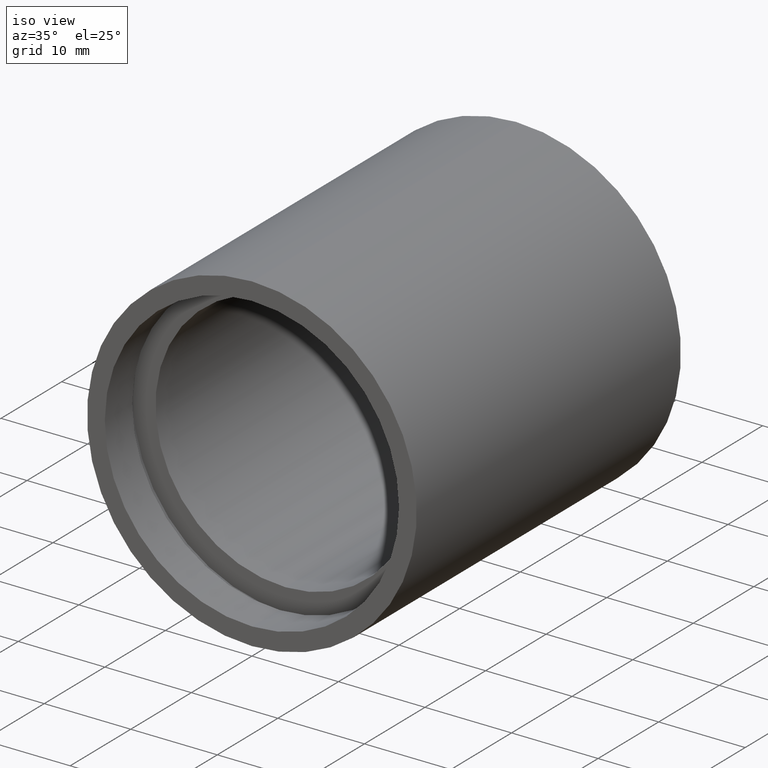
[diagram: clean part render]
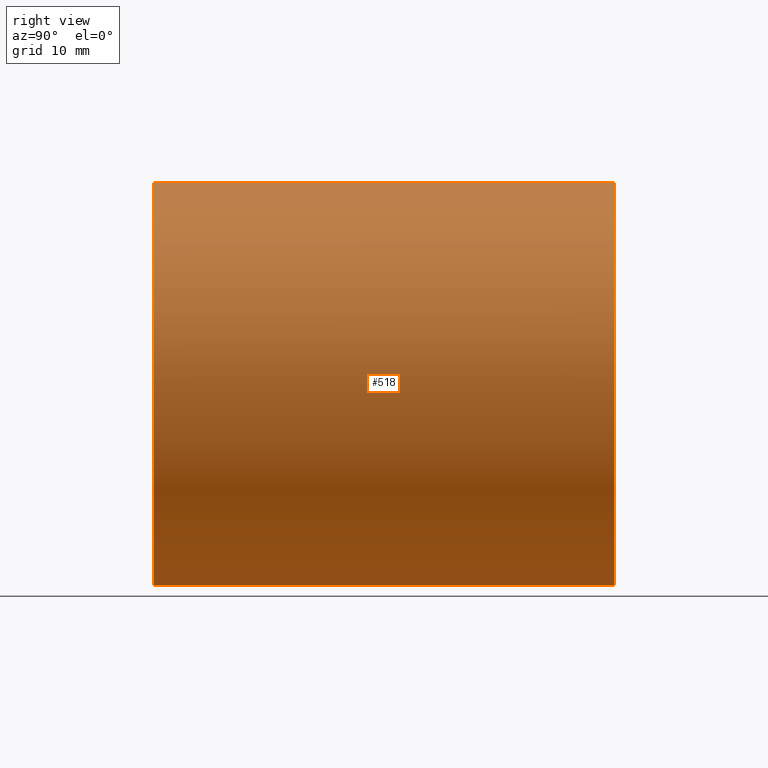
[diagram: tour spotlight — one face highlighted and labeled with its STEP entity id]
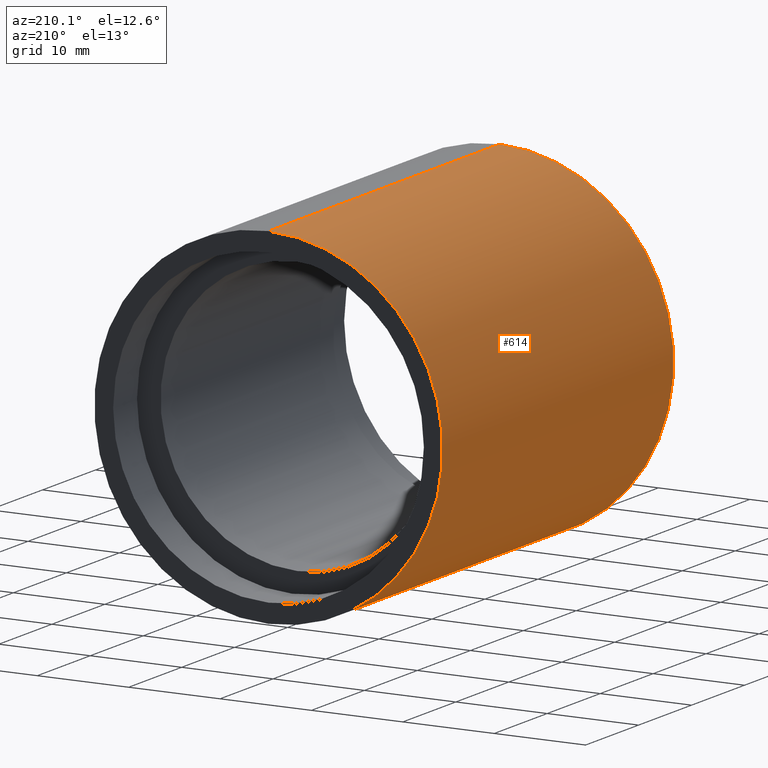
[diagram: tour spotlight — one face highlighted and labeled with its STEP entity id]
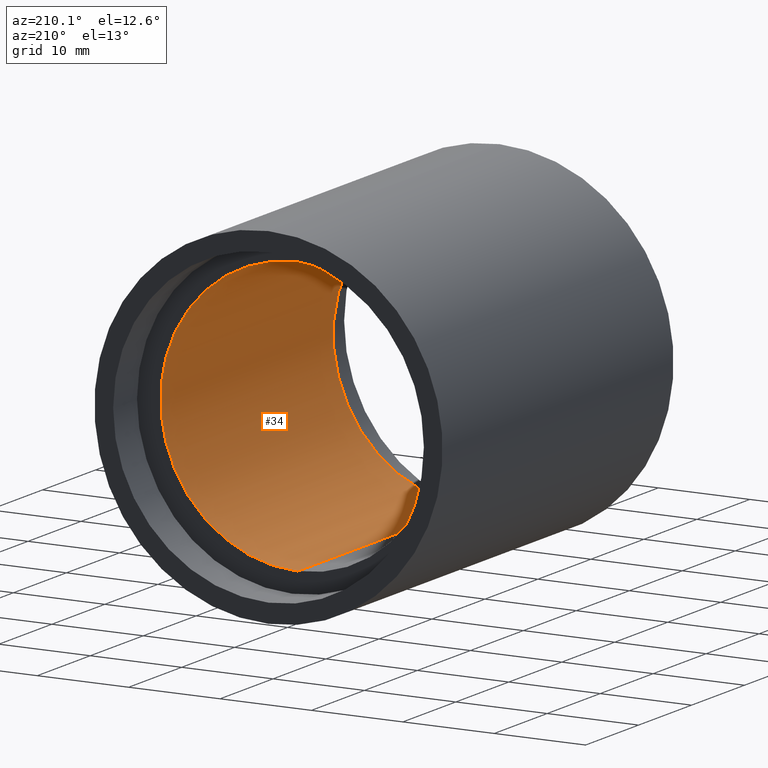
[diagram: tour spotlight — one face highlighted and labeled with its STEP entity id]
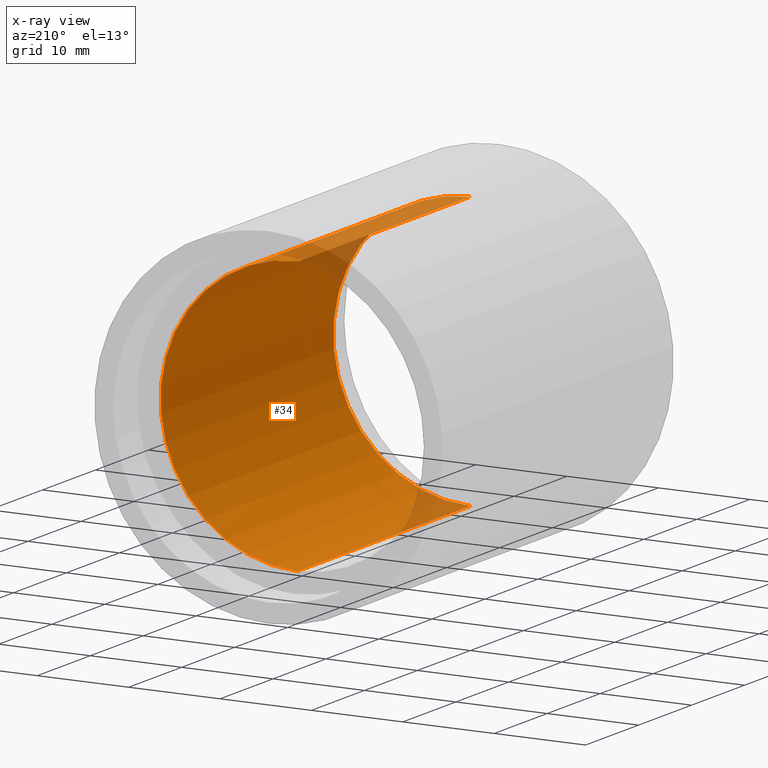
[diagram: x-ray of the same camera — body ghosted, this tour face saturated]
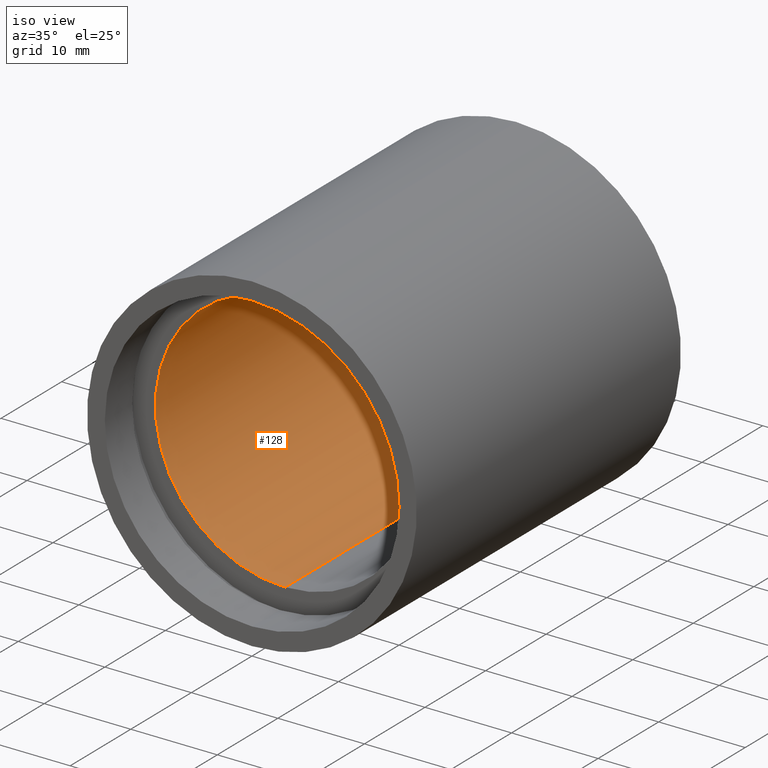
[diagram: tour spotlight — one face highlighted and labeled with its STEP entity id]
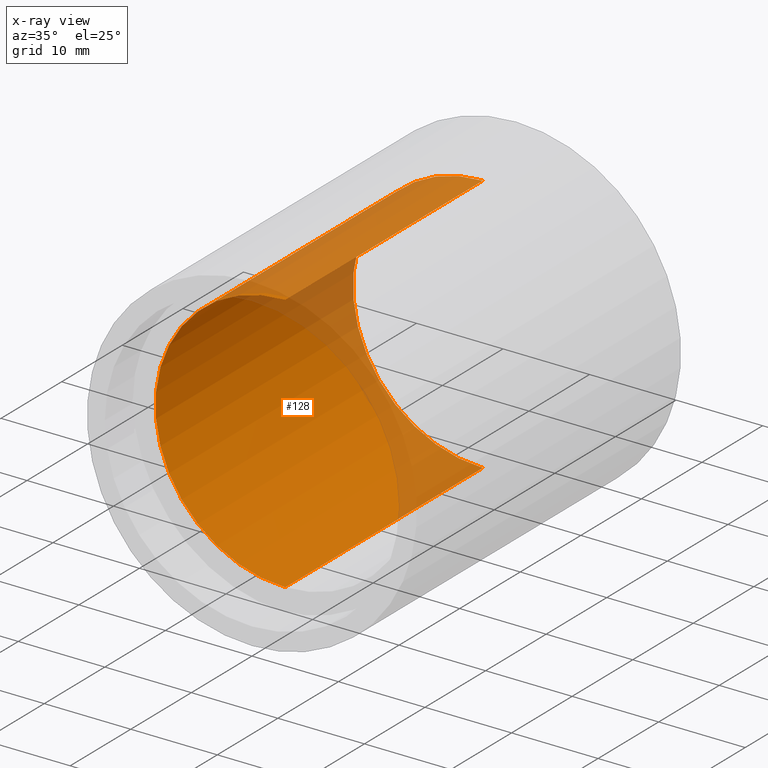
[diagram: x-ray of the same camera — body ghosted, this tour face saturated]
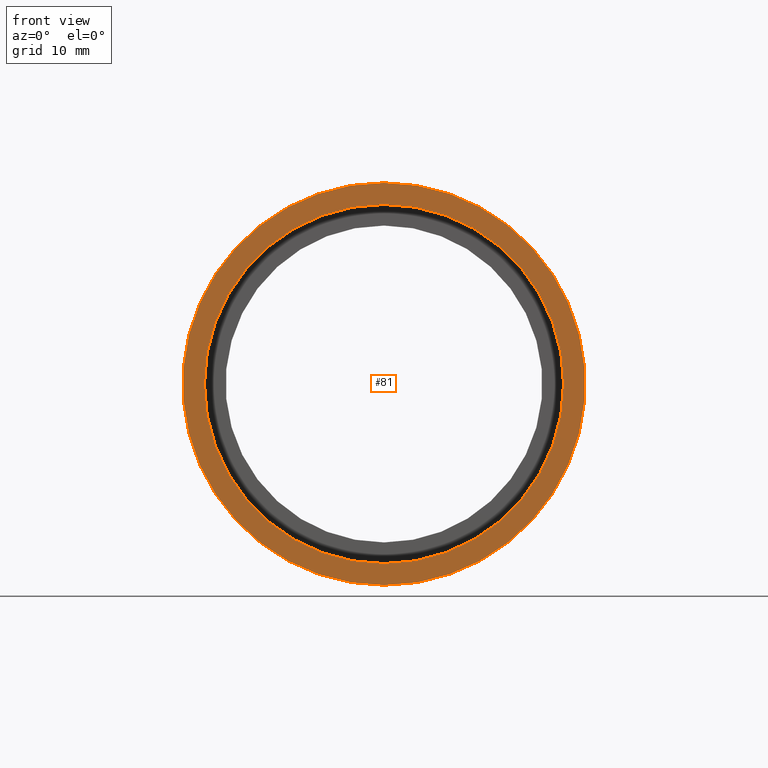
[diagram: tour spotlight — one face highlighted and labeled with its STEP entity id]
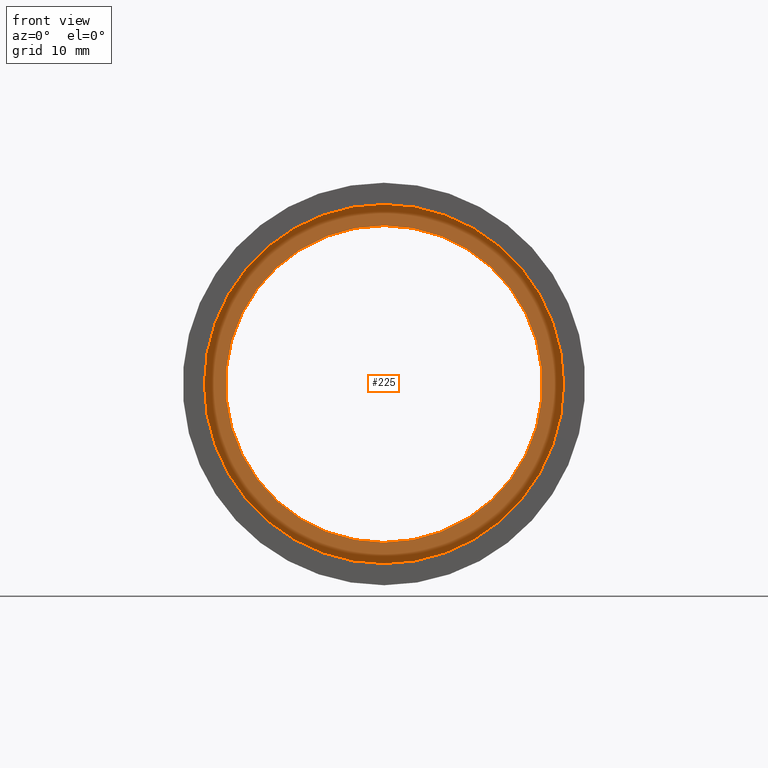
[diagram: tour spotlight — one face highlighted and labeled with its STEP entity id]
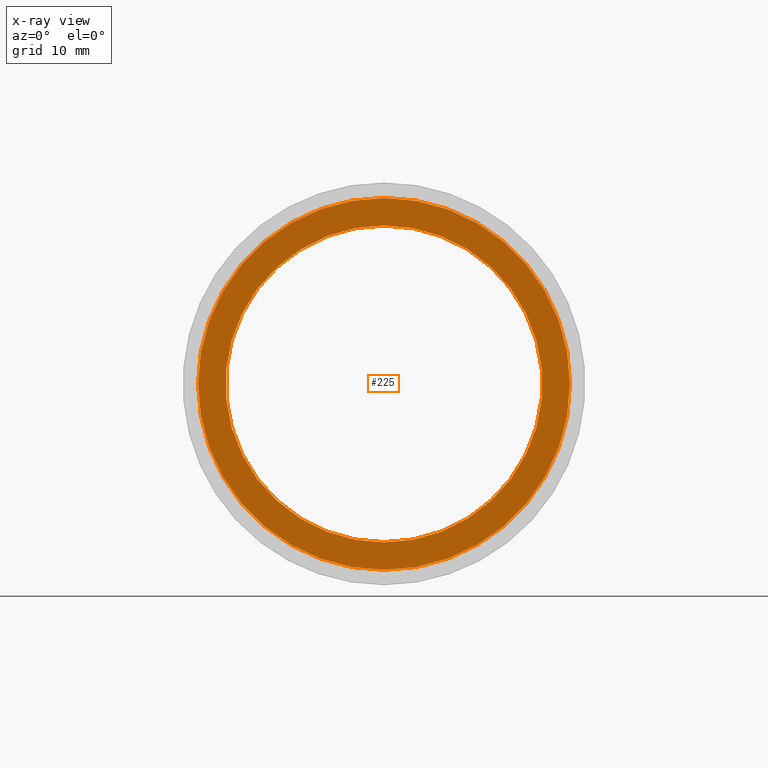
[diagram: x-ray of the same camera — body ghosted, this tour face saturated]
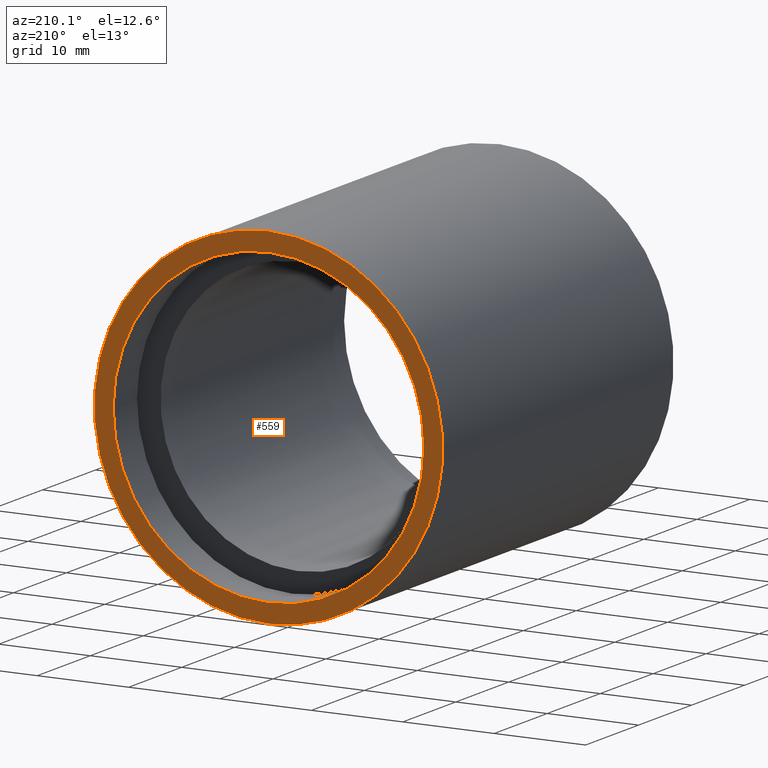
[diagram: tour spotlight — one face highlighted and labeled with its STEP entity id]
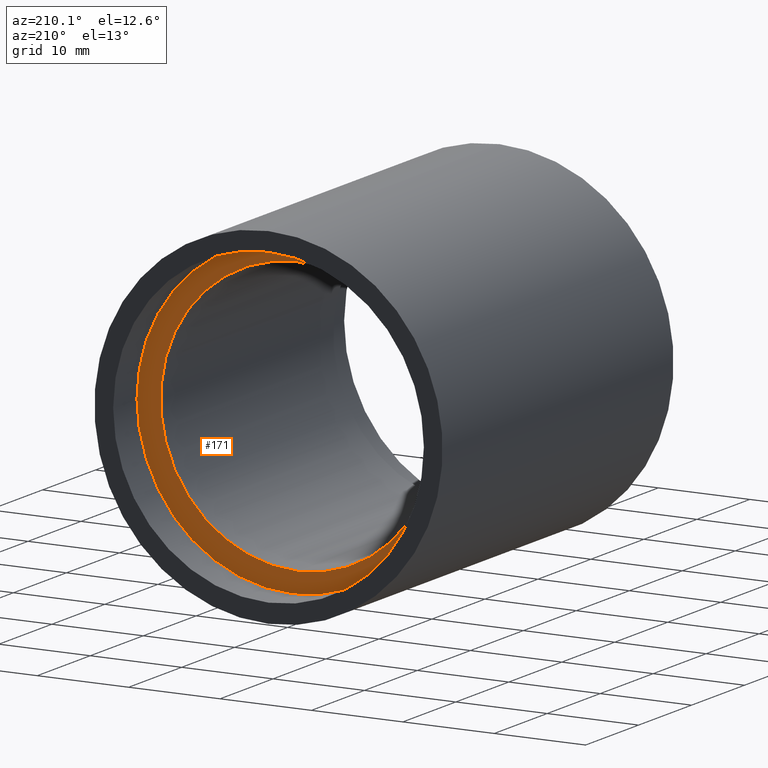
[diagram: tour spotlight — one face highlighted and labeled with its STEP entity id]
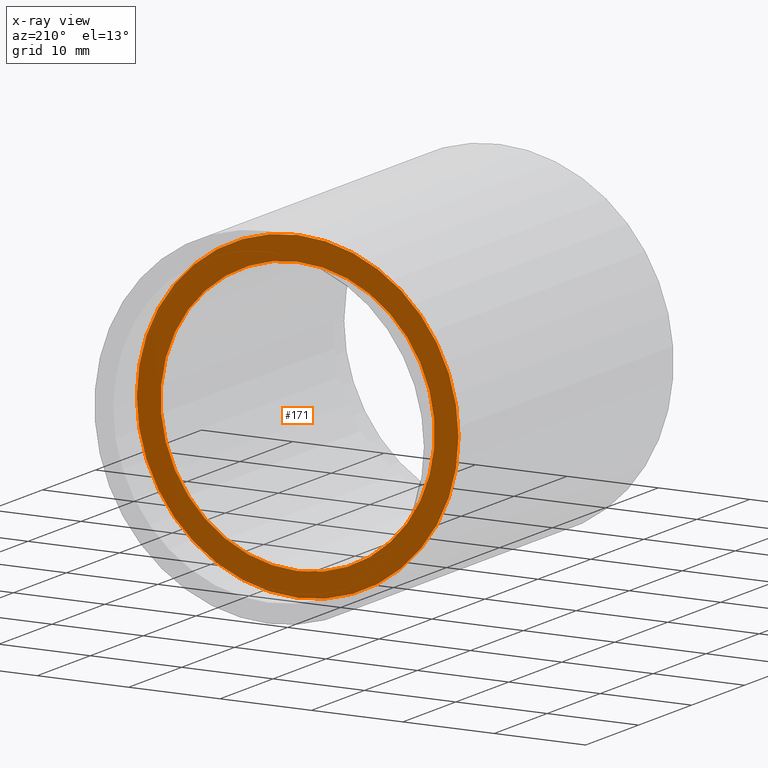
[diagram: x-ray of the same camera — body ghosted, this tour face saturated]
A machine part: a face-by-face anatomy tour. The part has 18 B-rep faces; the first image is the clean iso view, then the 8 largest visible faces are spotlighted one at a time (largest first), each with its STEP entity span.

Face 1 — right view, entity #518. In plain terms, the highlighted cylindrical surface (partial cylindrical patch) has radius 19.05 mm, axis along (-0, 1, -0).
Definition (entity closure, byte-faithful):
#30 = DIRECTION ( 'NONE',  ( -0.0000000000000000000, 1.000000000000000000, -0.0000000000000000000 ) ) ;
#50 = DIRECTION ( 'NONE',  ( -0.0000000000000000000, 1.000000000000000000, -0.0000000000000000000 ) ) ;
#79 = CARTESIAN_POINT ( 'NONE',  ( 2.332952152375710400E-015, -2.775557561562891400E-014, -19.05000000000002200 ) ) ;
#82 = EDGE_LOOP ( 'NONE', ( #83, #583, #237, #105 ) ) ;
#83 = ORIENTED_EDGE ( 'NONE', *, *, #216, .T. ) ;
#94 = AXIS2_PLACEMENT_3D ( 'NONE', #124, #30, #121 ) ;
#105 = ORIENTED_EDGE ( 'NONE', *, *, #505, .F. ) ;
#121 = DIRECTION ( 'NONE',  ( 0.0000000000000000000, 0.0000000000000000000, 1.000000000000000000 ) ) ;
#124 = CARTESIAN_POINT ( 'NONE',  ( 0.0000000000000000000, -2.775557561562891400E-014, 0.0000000000000000000 ) ) ;
#140 = CARTESIAN_POINT ( 'NONE',  ( 2.332952152375710400E-015, 161.3761669434274500, -19.05000000000002200 ) ) ;
#148 = CARTESIAN_POINT ( 'NONE',  ( 0.0000000000000000000, 43.59999999999998700, 0.0000000000000000000 ) ) ;
#181 = VECTOR ( 'NONE', #618, 1000.000000000000000 ) ;
#204 = FACE_OUTER_BOUND ( 'NONE', #82, .T. ) ;
#216 = EDGE_CURVE ( 'NONE', #556, #301, #302, .T. ) ;
#231 = CARTESIAN_POINT ( 'NONE',  ( 2.332952152375710400E-015, 43.59999999999998700, -19.05000000000002200 ) ) ;
#237 = ORIENTED_EDGE ( 'NONE', *, *, #612, .F. ) ;
#248 = DIRECTION ( 'NONE',  ( 0.0000000000000000000, 0.0000000000000000000, 1.000000000000000000 ) ) ;
#260 = VERTEX_POINT ( 'NONE', #231 ) ;
#277 = VERTEX_POINT ( 'NONE', #611 ) ;
#297 = AXIS2_PLACEMENT_3D ( 'NONE', #148, #482, #248 ) ;
#301 = VERTEX_POINT ( 'NONE', #79 ) ;
#302 = CIRCLE ( 'NONE', #94, 19.05000000000002200 ) ;
#326 = DIRECTION ( 'NONE',  ( -0.0000000000000000000, 1.000000000000000000, -0.0000000000000000000 ) ) ;
#334 = CARTESIAN_POINT ( 'NONE',  ( 0.0000000000000000000, 161.3761669434274500, 0.0000000000000000000 ) ) ;
#336 = EDGE_CURVE ( 'NONE', #301, #260, #390, .T. ) ;
#369 = CYLINDRICAL_SURFACE ( 'NONE', #582, 19.05000000000002200 ) ;
#390 = LINE ( 'NONE', #140, #181 ) ;
#428 = CARTESIAN_POINT ( 'NONE',  ( 0.0000000000000000000, 161.3761669434274500, 19.05000000000002200 ) ) ;
#433 = DIRECTION ( 'NONE',  ( 0.0000000000000000000, 0.0000000000000000000, 1.000000000000000000 ) ) ;
#452 = CIRCLE ( 'NONE', #297, 19.05000000000002200 ) ;
#474 = VECTOR ( 'NONE', #50, 1000.000000000000000 ) ;
#482 = DIRECTION ( 'NONE',  ( -0.0000000000000000000, 1.000000000000000000, -0.0000000000000000000 ) ) ;
#505 = EDGE_CURVE ( 'NONE', #556, #277, #562, .T. ) ;
#518 = ADVANCED_FACE ( 'NONE', ( #204 ), #369, .T. ) ;
#556 = VERTEX_POINT ( 'NONE', #572 ) ;
#562 = LINE ( 'NONE', #428, #474 ) ;
#572 = CARTESIAN_POINT ( 'NONE',  ( 0.0000000000000000000, -2.775557561562891400E-014, 19.05000000000002200 ) ) ;
#582 = AXIS2_PLACEMENT_3D ( 'NONE', #334, #326, #433 ) ;
#583 = ORIENTED_EDGE ( 'NONE', *, *, #336, .T. ) ;
#611 = CARTESIAN_POINT ( 'NONE',  ( 0.0000000000000000000, 43.59999999999998700, 19.05000000000002200 ) ) ;
#612 = EDGE_CURVE ( 'NONE', #277, #260, #452, .T. ) ;
#618 = DIRECTION ( 'NONE',  ( -0.0000000000000000000, 1.000000000000000000, -0.0000000000000000000 ) ) ;

Face 2 — auxiliary view, entity #614. In plain terms, the highlighted cylindrical surface (partial cylindrical patch) has radius 19.05 mm, axis along (-0, 1, -0).
Definition (entity closure, byte-faithful):
#3 = DIRECTION ( 'NONE',  ( -0.0000000000000000000, 1.000000000000000000, -0.0000000000000000000 ) ) ;
#22 = CIRCLE ( 'NONE', #366, 19.05000000000002200 ) ;
#33 = AXIS2_PLACEMENT_3D ( 'NONE', #328, #3, #98 ) ;
#50 = DIRECTION ( 'NONE',  ( -0.0000000000000000000, 1.000000000000000000, -0.0000000000000000000 ) ) ;
#52 = DIRECTION ( 'NONE',  ( 0.0000000000000000000, 0.0000000000000000000, 1.000000000000000000 ) ) ;
#56 = CIRCLE ( 'NONE', #130, 19.05000000000002200 ) ;
#76 = FACE_OUTER_BOUND ( 'NONE', #420, .T. ) ;
#79 = CARTESIAN_POINT ( 'NONE',  ( 2.332952152375710400E-015, -2.775557561562891400E-014, -19.05000000000002200 ) ) ;
#98 = DIRECTION ( 'NONE',  ( 0.0000000000000000000, 0.0000000000000000000, 1.000000000000000000 ) ) ;
#107 = ORIENTED_EDGE ( 'NONE', *, *, #505, .T. ) ;
#130 = AXIS2_PLACEMENT_3D ( 'NONE', #479, #194, #52 ) ;
#140 = CARTESIAN_POINT ( 'NONE',  ( 2.332952152375710400E-015, 161.3761669434274500, -19.05000000000002200 ) ) ;
#145 = EDGE_CURVE ( 'NONE', #301, #556, #22, .T. ) ;
#181 = VECTOR ( 'NONE', #618, 1000.000000000000000 ) ;
#194 = DIRECTION ( 'NONE',  ( -0.0000000000000000000, 1.000000000000000000, -0.0000000000000000000 ) ) ;
#231 = CARTESIAN_POINT ( 'NONE',  ( 2.332952152375710400E-015, 43.59999999999998700, -19.05000000000002200 ) ) ;
#260 = VERTEX_POINT ( 'NONE', #231 ) ;
#277 = VERTEX_POINT ( 'NONE', #611 ) ;
#301 = VERTEX_POINT ( 'NONE', #79 ) ;
#328 = CARTESIAN_POINT ( 'NONE',  ( 0.0000000000000000000, 161.3761669434274500, 0.0000000000000000000 ) ) ;
#336 = EDGE_CURVE ( 'NONE', #301, #260, #390, .T. ) ;
#344 = DIRECTION ( 'NONE',  ( -0.0000000000000000000, 1.000000000000000000, -0.0000000000000000000 ) ) ;
#352 = CYLINDRICAL_SURFACE ( 'NONE', #33, 19.05000000000002200 ) ;
#366 = AXIS2_PLACEMENT_3D ( 'NONE', #597, #344, #592 ) ;
#376 = ORIENTED_EDGE ( 'NONE', *, *, #336, .F. ) ;
#390 = LINE ( 'NONE', #140, #181 ) ;
#420 = EDGE_LOOP ( 'NONE', ( #376, #437, #107, #504 ) ) ;
#428 = CARTESIAN_POINT ( 'NONE',  ( 0.0000000000000000000, 161.3761669434274500, 19.05000000000002200 ) ) ;
#437 = ORIENTED_EDGE ( 'NONE', *, *, #145, .T. ) ;
#474 = VECTOR ( 'NONE', #50, 1000.000000000000000 ) ;
#479 = CARTESIAN_POINT ( 'NONE',  ( 0.0000000000000000000, 43.59999999999998700, 0.0000000000000000000 ) ) ;
#499 = EDGE_CURVE ( 'NONE', #260, #277, #56, .T. ) ;
#504 = ORIENTED_EDGE ( 'NONE', *, *, #499, .F. ) ;
#505 = EDGE_CURVE ( 'NONE', #556, #277, #562, .T. ) ;
#556 = VERTEX_POINT ( 'NONE', #572 ) ;
#562 = LINE ( 'NONE', #428, #474 ) ;
#572 = CARTESIAN_POINT ( 'NONE',  ( 0.0000000000000000000, -2.775557561562891400E-014, 19.05000000000002200 ) ) ;
#592 = DIRECTION ( 'NONE',  ( 0.0000000000000000000, 0.0000000000000000000, 1.000000000000000000 ) ) ;
#597 = CARTESIAN_POINT ( 'NONE',  ( 0.0000000000000000000, -2.775557561562891400E-014, 0.0000000000000000000 ) ) ;
#611 = CARTESIAN_POINT ( 'NONE',  ( 0.0000000000000000000, 43.59999999999998700, 19.05000000000002200 ) ) ;
#614 = ADVANCED_FACE ( 'NONE', ( #76 ), #352, .T. ) ;
#618 = DIRECTION ( 'NONE',  ( -0.0000000000000000000, 1.000000000000000000, -0.0000000000000000000 ) ) ;

Face 3 — auxiliary view, entity #34. An x-ray twin of the same camera follows (body ghosted, this face saturated) — the face is partly hidden behind the body. In plain terms, the highlighted cylindrical surface (partial cylindrical patch) has radius 15 mm, axis along (-0, 1, -0).
Definition (entity closure, byte-faithful):
#2 = DIRECTION ( 'NONE',  ( -0.0000000000000000000, 1.000000000000000000, -0.0000000000000000000 ) ) ;
#4 = DIRECTION ( 'NONE',  ( 0.0000000000000000000, 0.0000000000000000000, 1.000000000000000000 ) ) ;
#5 = VERTEX_POINT ( 'NONE', #240 ) ;
#18 = EDGE_CURVE ( 'NONE', #469, #5, #409, .T. ) ;
#20 = VECTOR ( 'NONE', #483, 1000.000000000000000 ) ;
#32 = CARTESIAN_POINT ( 'NONE',  ( 1.836970198721032000E-015, 161.3761669434274500, -15.00000000000001800 ) ) ;
#34 = ADVANCED_FACE ( 'NONE', ( #154 ), #188, .F. ) ;
#58 = CARTESIAN_POINT ( 'NONE',  ( 0.0000000000000000000, 38.09999999999998000, 15.00000000000001800 ) ) ;
#93 = CARTESIAN_POINT ( 'NONE',  ( 0.0000000000000000000, 5.499999999999976900, 0.0000000000000000000 ) ) ;
#112 = VERTEX_POINT ( 'NONE', #293 ) ;
#116 = EDGE_CURVE ( 'NONE', #469, #608, #143, .T. ) ;
#143 = LINE ( 'NONE', #481, #20 ) ;
#154 = FACE_OUTER_BOUND ( 'NONE', #447, .T. ) ;
#183 = DIRECTION ( 'NONE',  ( -0.0000000000000000000, 1.000000000000000000, -0.0000000000000000000 ) ) ;
#188 = CYLINDRICAL_SURFACE ( 'NONE', #239, 15.00000000000001800 ) ;
#195 = DIRECTION ( 'NONE',  ( 0.0000000000000000000, 0.0000000000000000000, 1.000000000000000000 ) ) ;
#233 = EDGE_CURVE ( 'NONE', #5, #112, #558, .T. ) ;
#234 = CARTESIAN_POINT ( 'NONE',  ( 0.0000000000000000000, 5.499999999999976900, 15.00000000000001800 ) ) ;
#239 = AXIS2_PLACEMENT_3D ( 'NONE', #373, #183, #195 ) ;
#240 = CARTESIAN_POINT ( 'NONE',  ( 1.836970198721032000E-015, 5.499999999999976900, -15.00000000000001800 ) ) ;
#266 = ORIENTED_EDGE ( 'NONE', *, *, #574, .T. ) ;
#293 = CARTESIAN_POINT ( 'NONE',  ( 1.836970198721032000E-015, 38.09999999999998000, -15.00000000000001800 ) ) ;
#340 = CIRCLE ( 'NONE', #527, 15.00000000000001800 ) ;
#345 = AXIS2_PLACEMENT_3D ( 'NONE', #93, #436, #4 ) ;
#360 = ORIENTED_EDGE ( 'NONE', *, *, #18, .F. ) ;
#361 = VECTOR ( 'NONE', #363, 1000.000000000000000 ) ;
#363 = DIRECTION ( 'NONE',  ( -0.0000000000000000000, 1.000000000000000000, -0.0000000000000000000 ) ) ;
#373 = CARTESIAN_POINT ( 'NONE',  ( 0.0000000000000000000, 161.3761669434274500, 0.0000000000000000000 ) ) ;
#409 = CIRCLE ( 'NONE', #345, 15.00000000000001800 ) ;
#436 = DIRECTION ( 'NONE',  ( -0.0000000000000000000, 1.000000000000000000, -0.0000000000000000000 ) ) ;
#447 = EDGE_LOOP ( 'NONE', ( #486, #360, #484, #266 ) ) ;
#469 = VERTEX_POINT ( 'NONE', #234 ) ;
#478 = CARTESIAN_POINT ( 'NONE',  ( 0.0000000000000000000, 38.09999999999998000, 0.0000000000000000000 ) ) ;
#481 = CARTESIAN_POINT ( 'NONE',  ( 0.0000000000000000000, 161.3761669434274500, 15.00000000000001800 ) ) ;
#483 = DIRECTION ( 'NONE',  ( -0.0000000000000000000, 1.000000000000000000, -0.0000000000000000000 ) ) ;
#484 = ORIENTED_EDGE ( 'NONE', *, *, #116, .T. ) ;
#486 = ORIENTED_EDGE ( 'NONE', *, *, #233, .F. ) ;
#527 = AXIS2_PLACEMENT_3D ( 'NONE', #478, #2, #576 ) ;
#558 = LINE ( 'NONE', #32, #361 ) ;
#574 = EDGE_CURVE ( 'NONE', #608, #112, #340, .T. ) ;
#576 = DIRECTION ( 'NONE',  ( 0.0000000000000000000, 0.0000000000000000000, 1.000000000000000000 ) ) ;
#608 = VERTEX_POINT ( 'NONE', #58 ) ;

Face 4 — iso view, entity #128. An x-ray twin of the same camera follows (body ghosted, this face saturated) — the face is partly hidden behind the body. In plain terms, the highlighted cylindrical surface (partial cylindrical patch) has radius 15 mm, axis along (-0, 1, -0).
Definition (entity closure, byte-faithful):
#5 = VERTEX_POINT ( 'NONE', #240 ) ;
#20 = VECTOR ( 'NONE', #483, 1000.000000000000000 ) ;
#32 = CARTESIAN_POINT ( 'NONE',  ( 1.836970198721032000E-015, 161.3761669434274500, -15.00000000000001800 ) ) ;
#35 = EDGE_CURVE ( 'NONE', #112, #608, #37, .T. ) ;
#37 = CIRCLE ( 'NONE', #184, 15.00000000000001800 ) ;
#58 = CARTESIAN_POINT ( 'NONE',  ( 0.0000000000000000000, 38.09999999999998000, 15.00000000000001800 ) ) ;
#64 = DIRECTION ( 'NONE',  ( -0.0000000000000000000, 1.000000000000000000, -0.0000000000000000000 ) ) ;
#104 = DIRECTION ( 'NONE',  ( 0.0000000000000000000, 0.0000000000000000000, 1.000000000000000000 ) ) ;
#112 = VERTEX_POINT ( 'NONE', #293 ) ;
#113 = DIRECTION ( 'NONE',  ( 0.0000000000000000000, 0.0000000000000000000, 1.000000000000000000 ) ) ;
#116 = EDGE_CURVE ( 'NONE', #469, #608, #143, .T. ) ;
#128 = ADVANCED_FACE ( 'NONE', ( #515 ), #511, .F. ) ;
#139 = EDGE_CURVE ( 'NONE', #5, #469, #530, .T. ) ;
#143 = LINE ( 'NONE', #481, #20 ) ;
#160 = ORIENTED_EDGE ( 'NONE', *, *, #116, .F. ) ;
#184 = AXIS2_PLACEMENT_3D ( 'NONE', #434, #64, #104 ) ;
#206 = AXIS2_PLACEMENT_3D ( 'NONE', #217, #396, #400 ) ;
#217 = CARTESIAN_POINT ( 'NONE',  ( 0.0000000000000000000, 5.499999999999976900, 0.0000000000000000000 ) ) ;
#233 = EDGE_CURVE ( 'NONE', #5, #112, #558, .T. ) ;
#234 = CARTESIAN_POINT ( 'NONE',  ( 0.0000000000000000000, 5.499999999999976900, 15.00000000000001800 ) ) ;
#240 = CARTESIAN_POINT ( 'NONE',  ( 1.836970198721032000E-015, 5.499999999999976900, -15.00000000000001800 ) ) ;
#293 = CARTESIAN_POINT ( 'NONE',  ( 1.836970198721032000E-015, 38.09999999999998000, -15.00000000000001800 ) ) ;
#309 = ORIENTED_EDGE ( 'NONE', *, *, #35, .T. ) ;
#315 = ORIENTED_EDGE ( 'NONE', *, *, #233, .T. ) ;
#333 = CARTESIAN_POINT ( 'NONE',  ( 0.0000000000000000000, 161.3761669434274500, 0.0000000000000000000 ) ) ;
#337 = EDGE_LOOP ( 'NONE', ( #623, #315, #309, #160 ) ) ;
#361 = VECTOR ( 'NONE', #363, 1000.000000000000000 ) ;
#363 = DIRECTION ( 'NONE',  ( -0.0000000000000000000, 1.000000000000000000, -0.0000000000000000000 ) ) ;
#396 = DIRECTION ( 'NONE',  ( -0.0000000000000000000, 1.000000000000000000, -0.0000000000000000000 ) ) ;
#400 = DIRECTION ( 'NONE',  ( 0.0000000000000000000, 0.0000000000000000000, 1.000000000000000000 ) ) ;
#432 = AXIS2_PLACEMENT_3D ( 'NONE', #333, #581, #113 ) ;
#434 = CARTESIAN_POINT ( 'NONE',  ( 0.0000000000000000000, 38.09999999999998000, 0.0000000000000000000 ) ) ;
#469 = VERTEX_POINT ( 'NONE', #234 ) ;
#481 = CARTESIAN_POINT ( 'NONE',  ( 0.0000000000000000000, 161.3761669434274500, 15.00000000000001800 ) ) ;
#483 = DIRECTION ( 'NONE',  ( -0.0000000000000000000, 1.000000000000000000, -0.0000000000000000000 ) ) ;
#511 = CYLINDRICAL_SURFACE ( 'NONE', #432, 15.00000000000001800 ) ;
#515 = FACE_OUTER_BOUND ( 'NONE', #337, .T. ) ;
#530 = CIRCLE ( 'NONE', #206, 15.00000000000001800 ) ;
#558 = LINE ( 'NONE', #32, #361 ) ;
#581 = DIRECTION ( 'NONE',  ( -0.0000000000000000000, 1.000000000000000000, -0.0000000000000000000 ) ) ;
#608 = VERTEX_POINT ( 'NONE', #58 ) ;
#623 = ORIENTED_EDGE ( 'NONE', *, *, #139, .F. ) ;

Face 5 — front view, entity #81. In plain terms, the highlighted planar face has unit normal (-0, 1, 0).
Definition (entity closure, byte-faithful):
#22 = CIRCLE ( 'NONE', #366, 19.05000000000002200 ) ;
#30 = DIRECTION ( 'NONE',  ( -0.0000000000000000000, 1.000000000000000000, -0.0000000000000000000 ) ) ;
#51 = EDGE_CURVE ( 'NONE', #321, #300, #146, .T. ) ;
#53 = EDGE_LOOP ( 'NONE', ( #457, #426 ) ) ;
#79 = CARTESIAN_POINT ( 'NONE',  ( 2.332952152375710400E-015, -2.775557561562891400E-014, -19.05000000000002200 ) ) ;
#81 = ADVANCED_FACE ( 'NONE', ( #573, #159 ), #289, .F. ) ;
#94 = AXIS2_PLACEMENT_3D ( 'NONE', #124, #30, #121 ) ;
#121 = DIRECTION ( 'NONE',  ( 0.0000000000000000000, 0.0000000000000000000, 1.000000000000000000 ) ) ;
#124 = CARTESIAN_POINT ( 'NONE',  ( 0.0000000000000000000, -2.775557561562891400E-014, 0.0000000000000000000 ) ) ;
#145 = EDGE_CURVE ( 'NONE', #301, #556, #22, .T. ) ;
#146 = CIRCLE ( 'NONE', #305, 17.00000000000002100 ) ;
#159 = FACE_BOUND ( 'NONE', #568, .T. ) ;
#178 = DIRECTION ( 'NONE',  ( 0.0000000000000000000, 0.0000000000000000000, 1.000000000000000000 ) ) ;
#216 = EDGE_CURVE ( 'NONE', #556, #301, #302, .T. ) ;
#220 = ORIENTED_EDGE ( 'NONE', *, *, #362, .T. ) ;
#228 = ORIENTED_EDGE ( 'NONE', *, *, #51, .T. ) ;
#257 = CARTESIAN_POINT ( 'NONE',  ( 17.00000000000002100, -1.527582111260147300E-014, 0.0000000000000000000 ) ) ;
#289 = PLANE ( 'NONE',  #332 ) ;
#300 = VERTEX_POINT ( 'NONE', #314 ) ;
#301 = VERTEX_POINT ( 'NONE', #79 ) ;
#302 = CIRCLE ( 'NONE', #94, 19.05000000000002200 ) ;
#305 = AXIS2_PLACEMENT_3D ( 'NONE', #588, #387, #335 ) ;
#314 = CARTESIAN_POINT ( 'NONE',  ( 0.0000000000000000000, -2.775557561562891400E-014, 17.00000000000002100 ) ) ;
#321 = VERTEX_POINT ( 'NONE', #600 ) ;
#332 = AXIS2_PLACEMENT_3D ( 'NONE', #257, #441, #590 ) ;
#335 = DIRECTION ( 'NONE',  ( 0.0000000000000000000, 0.0000000000000000000, 1.000000000000000000 ) ) ;
#344 = DIRECTION ( 'NONE',  ( -0.0000000000000000000, 1.000000000000000000, -0.0000000000000000000 ) ) ;
#362 = EDGE_CURVE ( 'NONE', #300, #321, #549, .T. ) ;
#366 = AXIS2_PLACEMENT_3D ( 'NONE', #597, #344, #592 ) ;
#387 = DIRECTION ( 'NONE',  ( -0.0000000000000000000, 1.000000000000000000, -0.0000000000000000000 ) ) ;
#416 = DIRECTION ( 'NONE',  ( -0.0000000000000000000, 1.000000000000000000, -0.0000000000000000000 ) ) ;
#426 = ORIENTED_EDGE ( 'NONE', *, *, #145, .F. ) ;
#441 = DIRECTION ( 'NONE',  ( -0.0000000000000000000, 1.000000000000000000, 0.0000000000000000000 ) ) ;
#448 = AXIS2_PLACEMENT_3D ( 'NONE', #561, #416, #178 ) ;
#457 = ORIENTED_EDGE ( 'NONE', *, *, #216, .F. ) ;
#549 = CIRCLE ( 'NONE', #448, 17.00000000000002100 ) ;
#556 = VERTEX_POINT ( 'NONE', #572 ) ;
#561 = CARTESIAN_POINT ( 'NONE',  ( 0.0000000000000000000, -2.775557561562891400E-014, 0.0000000000000000000 ) ) ;
#568 = EDGE_LOOP ( 'NONE', ( #220, #228 ) ) ;
#572 = CARTESIAN_POINT ( 'NONE',  ( 0.0000000000000000000, -2.775557561562891400E-014, 19.05000000000002200 ) ) ;
#573 = FACE_OUTER_BOUND ( 'NONE', #53, .T. ) ;
#588 = CARTESIAN_POINT ( 'NONE',  ( 0.0000000000000000000, -2.775557561562891400E-014, 0.0000000000000000000 ) ) ;
#590 = DIRECTION ( 'NONE',  ( 0.0000000000000000000, 0.0000000000000000000, 1.000000000000000000 ) ) ;
#592 = DIRECTION ( 'NONE',  ( 0.0000000000000000000, 0.0000000000000000000, 1.000000000000000000 ) ) ;
#597 = CARTESIAN_POINT ( 'NONE',  ( 0.0000000000000000000, -2.775557561562891400E-014, 0.0000000000000000000 ) ) ;
#600 = CARTESIAN_POINT ( 'NONE',  ( 2.081899558550503000E-015, -2.775557561562891400E-014, -17.00000000000002100 ) ) ;

Face 6 — front view, entity #225. An x-ray twin of the same camera follows (body ghosted, this face saturated) — the face is partly hidden behind the body. In plain terms, the highlighted planar face has unit normal (-0, 1, 0).
Definition (entity closure, byte-faithful):
#4 = DIRECTION ( 'NONE',  ( 0.0000000000000000000, 0.0000000000000000000, 1.000000000000000000 ) ) ;
#5 = VERTEX_POINT ( 'NONE', #240 ) ;
#18 = EDGE_CURVE ( 'NONE', #469, #5, #409, .T. ) ;
#65 = AXIS2_PLACEMENT_3D ( 'NONE', #306, #349, #540 ) ;
#68 = FACE_BOUND ( 'NONE', #557, .T. ) ;
#73 = FACE_OUTER_BOUND ( 'NONE', #410, .T. ) ;
#93 = CARTESIAN_POINT ( 'NONE',  ( 0.0000000000000000000, 5.499999999999976900, 0.0000000000000000000 ) ) ;
#110 = CARTESIAN_POINT ( 'NONE',  ( 2.155378366499344400E-015, 5.499999999999976900, -17.60000000000002300 ) ) ;
#125 = AXIS2_PLACEMENT_3D ( 'NONE', #508, #222, #364 ) ;
#139 = EDGE_CURVE ( 'NONE', #5, #469, #530, .T. ) ;
#147 = VERTEX_POINT ( 'NONE', #110 ) ;
#158 = EDGE_CURVE ( 'NONE', #200, #147, #288, .T. ) ;
#166 = PLANE ( 'NONE',  #125 ) ;
#200 = VERTEX_POINT ( 'NONE', #446 ) ;
#206 = AXIS2_PLACEMENT_3D ( 'NONE', #217, #396, #400 ) ;
#210 = EDGE_CURVE ( 'NONE', #147, #200, #251, .T. ) ;
#217 = CARTESIAN_POINT ( 'NONE',  ( 0.0000000000000000000, 5.499999999999976900, 0.0000000000000000000 ) ) ;
#222 = DIRECTION ( 'NONE',  ( -0.0000000000000000000, 1.000000000000000000, 0.0000000000000000000 ) ) ;
#225 = ADVANCED_FACE ( 'NONE', ( #73, #68 ), #166, .F. ) ;
#234 = CARTESIAN_POINT ( 'NONE',  ( 0.0000000000000000000, 5.499999999999976900, 15.00000000000001800 ) ) ;
#240 = CARTESIAN_POINT ( 'NONE',  ( 1.836970198721032000E-015, 5.499999999999976900, -15.00000000000001800 ) ) ;
#251 = CIRCLE ( 'NONE', #541, 17.60000000000002300 ) ;
#288 = CIRCLE ( 'NONE', #65, 17.60000000000002300 ) ;
#306 = CARTESIAN_POINT ( 'NONE',  ( 0.0000000000000000000, 5.499999999999976900, 0.0000000000000000000 ) ) ;
#339 = ORIENTED_EDGE ( 'NONE', *, *, #139, .T. ) ;
#345 = AXIS2_PLACEMENT_3D ( 'NONE', #93, #436, #4 ) ;
#349 = DIRECTION ( 'NONE',  ( -0.0000000000000000000, 1.000000000000000000, -0.0000000000000000000 ) ) ;
#364 = DIRECTION ( 'NONE',  ( 0.0000000000000000000, 0.0000000000000000000, 1.000000000000000000 ) ) ;
#396 = DIRECTION ( 'NONE',  ( -0.0000000000000000000, 1.000000000000000000, -0.0000000000000000000 ) ) ;
#399 = ORIENTED_EDGE ( 'NONE', *, *, #158, .F. ) ;
#400 = DIRECTION ( 'NONE',  ( 0.0000000000000000000, 0.0000000000000000000, 1.000000000000000000 ) ) ;
#409 = CIRCLE ( 'NONE', #345, 15.00000000000001800 ) ;
#410 = EDGE_LOOP ( 'NONE', ( #399, #598 ) ) ;
#436 = DIRECTION ( 'NONE',  ( -0.0000000000000000000, 1.000000000000000000, -0.0000000000000000000 ) ) ;
#446 = CARTESIAN_POINT ( 'NONE',  ( 0.0000000000000000000, 5.499999999999976900, 17.60000000000002300 ) ) ;
#453 = DIRECTION ( 'NONE',  ( -0.0000000000000000000, 1.000000000000000000, -0.0000000000000000000 ) ) ;
#455 = CARTESIAN_POINT ( 'NONE',  ( 0.0000000000000000000, 5.499999999999976900, 0.0000000000000000000 ) ) ;
#469 = VERTEX_POINT ( 'NONE', #234 ) ;
#508 = CARTESIAN_POINT ( 'NONE',  ( 15.00000000000001800, 5.499999999999984000, 0.0000000000000000000 ) ) ;
#530 = CIRCLE ( 'NONE', #206, 15.00000000000001800 ) ;
#531 = ORIENTED_EDGE ( 'NONE', *, *, #18, .T. ) ;
#540 = DIRECTION ( 'NONE',  ( 0.0000000000000000000, 0.0000000000000000000, 1.000000000000000000 ) ) ;
#541 = AXIS2_PLACEMENT_3D ( 'NONE', #455, #453, #555 ) ;
#555 = DIRECTION ( 'NONE',  ( 0.0000000000000000000, 0.0000000000000000000, 1.000000000000000000 ) ) ;
#557 = EDGE_LOOP ( 'NONE', ( #531, #339 ) ) ;
#598 = ORIENTED_EDGE ( 'NONE', *, *, #210, .F. ) ;

Face 7 — auxiliary view, entity #559. In plain terms, the highlighted planar face has unit normal (0, -1, 0).
Definition (entity closure, byte-faithful):
#12 = CARTESIAN_POINT ( 'NONE',  ( 0.0000000000000000000, 43.59999999999998700, 17.00000000000002100 ) ) ;
#38 = VERTEX_POINT ( 'NONE', #12 ) ;
#41 = DIRECTION ( 'NONE',  ( -0.0000000000000000000, 1.000000000000000000, -0.0000000000000000000 ) ) ;
#45 = CARTESIAN_POINT ( 'NONE',  ( 0.0000000000000000000, 43.59999999999998700, 0.0000000000000000000 ) ) ;
#52 = DIRECTION ( 'NONE',  ( 0.0000000000000000000, 0.0000000000000000000, 1.000000000000000000 ) ) ;
#55 = ORIENTED_EDGE ( 'NONE', *, *, #499, .T. ) ;
#56 = CIRCLE ( 'NONE', #130, 19.05000000000002200 ) ;
#100 = FACE_OUTER_BOUND ( 'NONE', #135, .T. ) ;
#130 = AXIS2_PLACEMENT_3D ( 'NONE', #479, #194, #52 ) ;
#132 = DIRECTION ( 'NONE',  ( 0.0000000000000000000, 0.0000000000000000000, 1.000000000000000000 ) ) ;
#133 = DIRECTION ( 'NONE',  ( 0.0000000000000000000, 0.0000000000000000000, 1.000000000000000000 ) ) ;
#135 = EDGE_LOOP ( 'NONE', ( #451, #55 ) ) ;
#148 = CARTESIAN_POINT ( 'NONE',  ( 0.0000000000000000000, 43.59999999999998700, 0.0000000000000000000 ) ) ;
#162 = FACE_BOUND ( 'NONE', #296, .T. ) ;
#194 = DIRECTION ( 'NONE',  ( -0.0000000000000000000, 1.000000000000000000, -0.0000000000000000000 ) ) ;
#196 = DIRECTION ( 'NONE',  ( 0.0000000000000000000, -1.000000000000000000, 0.0000000000000000000 ) ) ;
#214 = ORIENTED_EDGE ( 'NONE', *, *, #380, .F. ) ;
#229 = CIRCLE ( 'NONE', #358, 17.00000000000002100 ) ;
#231 = CARTESIAN_POINT ( 'NONE',  ( 2.332952152375710400E-015, 43.59999999999998700, -19.05000000000002200 ) ) ;
#244 = CARTESIAN_POINT ( 'NONE',  ( 17.00000000000002100, 43.59999999999998700, 0.0000000000000000000 ) ) ;
#248 = DIRECTION ( 'NONE',  ( 0.0000000000000000000, 0.0000000000000000000, 1.000000000000000000 ) ) ;
#260 = VERTEX_POINT ( 'NONE', #231 ) ;
#277 = VERTEX_POINT ( 'NONE', #611 ) ;
#285 = DIRECTION ( 'NONE',  ( 0.0000000000000000000, -0.0000000000000000000, -1.000000000000000000 ) ) ;
#296 = EDGE_LOOP ( 'NONE', ( #214, #585 ) ) ;
#297 = AXIS2_PLACEMENT_3D ( 'NONE', #148, #482, #248 ) ;
#319 = CARTESIAN_POINT ( 'NONE',  ( 0.0000000000000000000, 43.59999999999998700, 0.0000000000000000000 ) ) ;
#358 = AXIS2_PLACEMENT_3D ( 'NONE', #319, #41, #133 ) ;
#378 = EDGE_CURVE ( 'NONE', #472, #38, #229, .T. ) ;
#380 = EDGE_CURVE ( 'NONE', #38, #472, #459, .T. ) ;
#402 = AXIS2_PLACEMENT_3D ( 'NONE', #244, #196, #285 ) ;
#415 = AXIS2_PLACEMENT_3D ( 'NONE', #45, #473, #132 ) ;
#451 = ORIENTED_EDGE ( 'NONE', *, *, #612, .T. ) ;
#452 = CIRCLE ( 'NONE', #297, 19.05000000000002200 ) ;
#459 = CIRCLE ( 'NONE', #415, 17.00000000000002100 ) ;
#472 = VERTEX_POINT ( 'NONE', #613 ) ;
#473 = DIRECTION ( 'NONE',  ( -0.0000000000000000000, 1.000000000000000000, -0.0000000000000000000 ) ) ;
#479 = CARTESIAN_POINT ( 'NONE',  ( 0.0000000000000000000, 43.59999999999998700, 0.0000000000000000000 ) ) ;
#482 = DIRECTION ( 'NONE',  ( -0.0000000000000000000, 1.000000000000000000, -0.0000000000000000000 ) ) ;
#499 = EDGE_CURVE ( 'NONE', #260, #277, #56, .T. ) ;
#528 = PLANE ( 'NONE',  #402 ) ;
#559 = ADVANCED_FACE ( 'NONE', ( #162, #100 ), #528, .F. ) ;
#585 = ORIENTED_EDGE ( 'NONE', *, *, #378, .F. ) ;
#611 = CARTESIAN_POINT ( 'NONE',  ( 0.0000000000000000000, 43.59999999999998700, 19.05000000000002200 ) ) ;
#612 = EDGE_CURVE ( 'NONE', #277, #260, #452, .T. ) ;
#613 = CARTESIAN_POINT ( 'NONE',  ( 2.081899558550503000E-015, 43.59999999999998700, -17.00000000000002100 ) ) ;

Face 8 — auxiliary view, entity #171. An x-ray twin of the same camera follows (body ghosted, this face saturated) — the face is partly hidden behind the body. In plain terms, the highlighted planar face has unit normal (0, -1, 0).
Definition (entity closure, byte-faithful):
#2 = DIRECTION ( 'NONE',  ( -0.0000000000000000000, 1.000000000000000000, -0.0000000000000000000 ) ) ;
#11 = AXIS2_PLACEMENT_3D ( 'NONE', #63, #13, #381 ) ;
#13 = DIRECTION ( 'NONE',  ( -0.0000000000000000000, 1.000000000000000000, -0.0000000000000000000 ) ) ;
#35 = EDGE_CURVE ( 'NONE', #112, #608, #37, .T. ) ;
#37 = CIRCLE ( 'NONE', #184, 15.00000000000001800 ) ;
#54 = FACE_BOUND ( 'NONE', #510, .T. ) ;
#58 = CARTESIAN_POINT ( 'NONE',  ( 0.0000000000000000000, 38.09999999999998000, 15.00000000000001800 ) ) ;
#63 = CARTESIAN_POINT ( 'NONE',  ( 0.0000000000000000000, 38.09999999999998000, 0.0000000000000000000 ) ) ;
#64 = DIRECTION ( 'NONE',  ( -0.0000000000000000000, 1.000000000000000000, -0.0000000000000000000 ) ) ;
#70 = CARTESIAN_POINT ( 'NONE',  ( 0.0000000000000000000, 38.09999999999998000, 17.60000000000001600 ) ) ;
#71 = CARTESIAN_POINT ( 'NONE',  ( 15.00000000000001800, 38.09999999999998000, 0.0000000000000000000 ) ) ;
#101 = EDGE_CURVE ( 'NONE', #404, #182, #258, .T. ) ;
#104 = DIRECTION ( 'NONE',  ( 0.0000000000000000000, 0.0000000000000000000, 1.000000000000000000 ) ) ;
#112 = VERTEX_POINT ( 'NONE', #293 ) ;
#118 = DIRECTION ( 'NONE',  ( 0.0000000000000000000, -1.000000000000000000, 0.0000000000000000000 ) ) ;
#171 = ADVANCED_FACE ( 'NONE', ( #54, #219 ), #442, .F. ) ;
#182 = VERTEX_POINT ( 'NONE', #70 ) ;
#184 = AXIS2_PLACEMENT_3D ( 'NONE', #434, #64, #104 ) ;
#219 = FACE_OUTER_BOUND ( 'NONE', #367, .T. ) ;
#258 = CIRCLE ( 'NONE', #11, 17.60000000000001600 ) ;
#270 = EDGE_CURVE ( 'NONE', #182, #404, #377, .T. ) ;
#280 = CARTESIAN_POINT ( 'NONE',  ( 2.155378366499343600E-015, 38.09999999999998000, -17.60000000000001600 ) ) ;
#293 = CARTESIAN_POINT ( 'NONE',  ( 1.836970198721032000E-015, 38.09999999999998000, -15.00000000000001800 ) ) ;
#295 = AXIS2_PLACEMENT_3D ( 'NONE', #71, #118, #542 ) ;
#340 = CIRCLE ( 'NONE', #527, 15.00000000000001800 ) ;
#354 = CARTESIAN_POINT ( 'NONE',  ( 0.0000000000000000000, 38.09999999999998000, 0.0000000000000000000 ) ) ;
#357 = DIRECTION ( 'NONE',  ( -0.0000000000000000000, 1.000000000000000000, -0.0000000000000000000 ) ) ;
#367 = EDGE_LOOP ( 'NONE', ( #575, #599 ) ) ;
#377 = CIRCLE ( 'NONE', #394, 17.60000000000001600 ) ;
#381 = DIRECTION ( 'NONE',  ( 0.0000000000000000000, 0.0000000000000000000, 1.000000000000000000 ) ) ;
#394 = AXIS2_PLACEMENT_3D ( 'NONE', #354, #357, #449 ) ;
#404 = VERTEX_POINT ( 'NONE', #280 ) ;
#434 = CARTESIAN_POINT ( 'NONE',  ( 0.0000000000000000000, 38.09999999999998000, 0.0000000000000000000 ) ) ;
#442 = PLANE ( 'NONE',  #295 ) ;
#449 = DIRECTION ( 'NONE',  ( 0.0000000000000000000, 0.0000000000000000000, 1.000000000000000000 ) ) ;
#478 = CARTESIAN_POINT ( 'NONE',  ( 0.0000000000000000000, 38.09999999999998000, 0.0000000000000000000 ) ) ;
#510 = EDGE_LOOP ( 'NONE', ( #522, #548 ) ) ;
#522 = ORIENTED_EDGE ( 'NONE', *, *, #574, .F. ) ;
#527 = AXIS2_PLACEMENT_3D ( 'NONE', #478, #2, #576 ) ;
#542 = DIRECTION ( 'NONE',  ( 0.0000000000000000000, -0.0000000000000000000, -1.000000000000000000 ) ) ;
#548 = ORIENTED_EDGE ( 'NONE', *, *, #35, .F. ) ;
#574 = EDGE_CURVE ( 'NONE', #608, #112, #340, .T. ) ;
#575 = ORIENTED_EDGE ( 'NONE', *, *, #270, .T. ) ;
#576 = DIRECTION ( 'NONE',  ( 0.0000000000000000000, 0.0000000000000000000, 1.000000000000000000 ) ) ;
#599 = ORIENTED_EDGE ( 'NONE', *, *, #101, .T. ) ;
#608 = VERTEX_POINT ( 'NONE', #58 ) ;